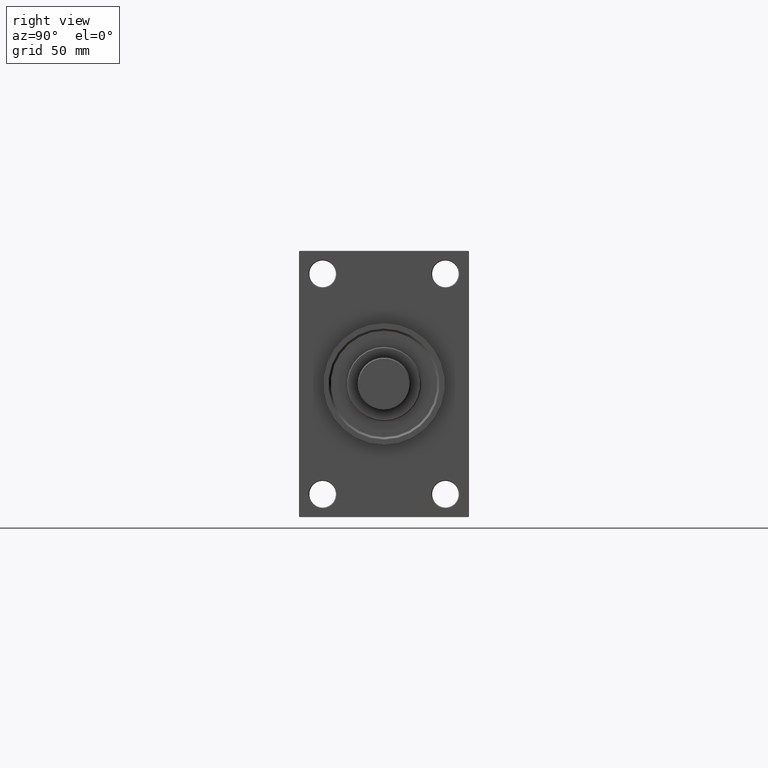
[diagram: clean part render]
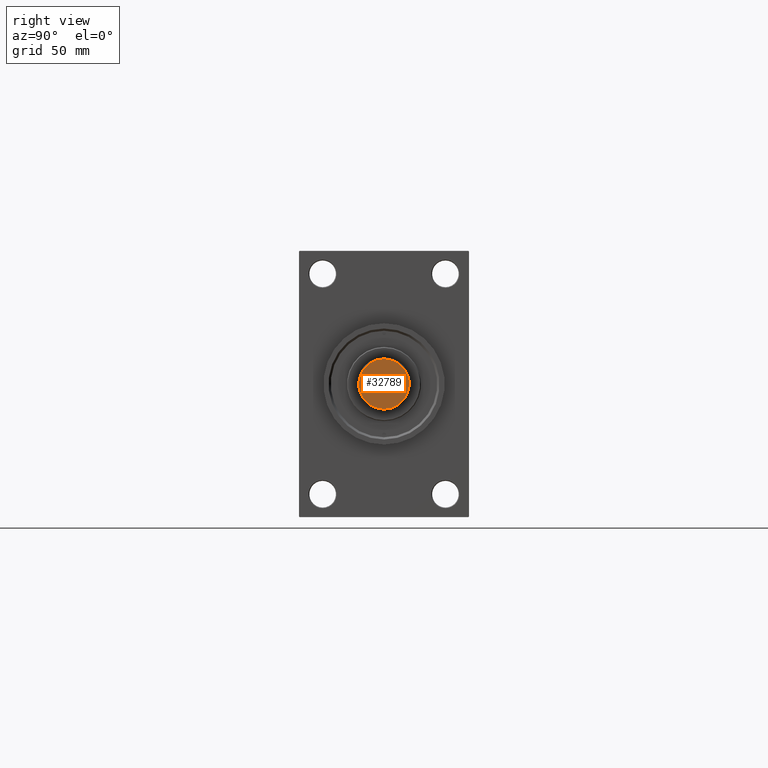
[diagram: same view with one face highlighted and labeled with its STEP entity id]
A machine part, right view. The second image highlights one B-rep face of the part: STEP entity #32789.
In plain terms, the highlighted planar face has unit normal (1, 0, 0).
Its self-contained STEP definition (entity closure, byte-faithful):
#565 = AXIS2_PLACEMENT_3D ( 'NONE', #19480, #15564, #4072 ) ;
#1393 = CARTESIAN_POINT ( 'NONE',  ( 0.000000000000000000, 0.000000000000000000, 0.000000000000000000 ) ) ;
#4072 = DIRECTION ( 'NONE',  ( 1.000000000000000000, 0.000000000000000000, -0.000000000000000000 ) ) ;
#4284 = DIRECTION ( 'NONE',  ( 1.000000000000000000, 0.000000000000000000, 0.000000000000000000 ) ) ;
#4738 = EDGE_LOOP ( 'NONE', ( #11440, #7936 ) ) ;
#5067 = DIRECTION ( 'NONE',  ( 0.000000000000000000, 0.000000000000000000, 1.000000000000000000 ) ) ;
#5240 = VERTEX_POINT ( 'NONE', #7347 ) ;
#7347 = CARTESIAN_POINT ( 'NONE',  ( -17.00000000000000355, 2.112515728529184856E-15, 0.000000000000000000 ) ) ;
#7394 = VERTEX_POINT ( 'NONE', #28060 ) ;
#7936 = ORIENTED_EDGE ( 'NONE', *, *, #12698, .T. ) ;
#11440 = ORIENTED_EDGE ( 'NONE', *, *, #30287, .T. ) ;
#12698 = EDGE_CURVE ( 'NONE', #5240, #7394, #36730, .T. ) ;
#15564 = DIRECTION ( 'NONE',  ( 0.000000000000000000, 0.000000000000000000, 1.000000000000000000 ) ) ;
#19480 = CARTESIAN_POINT ( 'NONE',  ( 0.000000000000000000, 0.000000000000000000, 0.000000000000000000 ) ) ;
#19736 = DIRECTION ( 'NONE',  ( 1.000000000000000000, 0.000000000000000000, 0.000000000000000000 ) ) ;
#20812 = AXIS2_PLACEMENT_3D ( 'NONE', #1393, #5067, #19736 ) ;
#24248 = AXIS2_PLACEMENT_3D ( 'NONE', #44874, #26288, #4284 ) ;
#26288 = DIRECTION ( 'NONE',  ( 0.000000000000000000, 0.000000000000000000, 1.000000000000000000 ) ) ;
#28060 = CARTESIAN_POINT ( 'NONE',  ( 17.00000000000000355, 0.000000000000000000, 0.000000000000000000 ) ) ;
#30287 = EDGE_CURVE ( 'NONE', #7394, #5240, #41872, .T. ) ;
#32789 = ADVANCED_FACE ( 'NONE', ( #41473 ), #34667, .T. ) ;
#34667 = PLANE ( 'NONE',  #565 ) ;
#36730 = CIRCLE ( 'NONE', #24248, 17.00000000000000355 ) ;
#41473 = FACE_OUTER_BOUND ( 'NONE', #4738, .T. ) ;
#41872 = CIRCLE ( 'NONE', #20812, 17.00000000000000355 ) ;
#44874 = CARTESIAN_POINT ( 'NONE',  ( 0.000000000000000000, 0.000000000000000000, 0.000000000000000000 ) ) ;